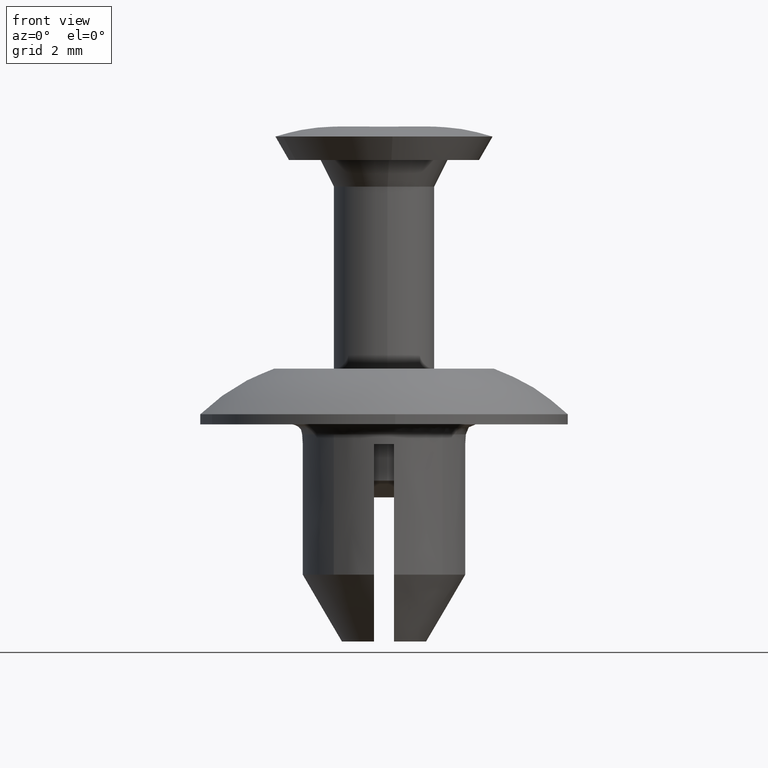
[diagram: clean part render]
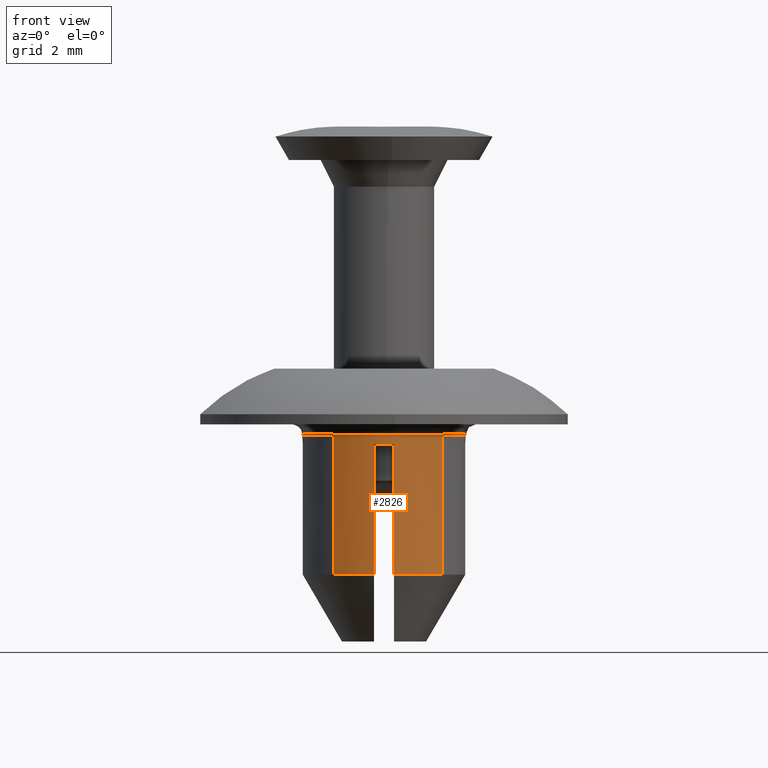
[diagram: same view with one face highlighted and labeled with its STEP entity id]
A machine part, front view. The second image highlights one B-rep face of the part: STEP entity #2826.
In plain terms, the highlighted face is a freeform B-spline surface patch.
Its self-contained STEP definition (entity closure, byte-faithful):
#2495=CARTESIAN_POINT('',(-1.502842864330901,-1.934932382571793,-9.213397459613795));
#2496=VERTEX_POINT('',#2495);
#2559=CARTESIAN_POINT('',(1.748466203141140,-1.716206845480194,-9.213397459621731));
#2560=VERTEX_POINT('',#2559);
#2574=CARTESIAN_POINT('',(1.748466196364398,-1.716206852384331,-13.413397459621700));
#2575=VERTEX_POINT('',#2574);
#2576=CARTESIAN_POINT('',(1.748466203141140,-1.716206845480194,-9.213397459621731));
#2577=CARTESIAN_POINT('',(1.748466196364398,-1.716206852384331,-13.413397459621700));
#2578=QUASI_UNIFORM_CURVE('',1,(#2576,#2577),.UNSPECIFIED.,.F.,.U.);
#2579=EDGE_CURVE('',#2560,#2575,#2578,.T.);
#2713=CARTESIAN_POINT('',(-1.502842821262076,-1.934932416024120,-13.413397459621660));
#2714=VERTEX_POINT('',#2713);
#2728=CARTESIAN_POINT('',(-1.502842864330901,-1.934932382571793,-9.213397459613795));
#2729=CARTESIAN_POINT('',(-1.502842821262076,-1.934932416024120,-13.413397459621660));
#2730=QUASI_UNIFORM_CURVE('',1,(#2728,#2729),.UNSPECIFIED.,.F.,.U.);
#2731=EDGE_CURVE('',#2496,#2714,#2730,.T.);
#2736=CARTESIAN_POINT('',(1.748466180731920,-1.716206868310638,-9.108397459583525));
#2737=CARTESIAN_POINT('',(0.220198207599098,-3.273201491428996,-9.108397459583525));
#2738=CARTESIAN_POINT('',(-1.502842956793189,-1.934932310758435,-9.108397459583527));
#2739=CARTESIAN_POINT('',(1.748466180731920,-1.716206868310638,-13.521022459622660));
#2740=CARTESIAN_POINT('',(0.220198207599098,-3.273201491428996,-13.521022459622660));
#2741=CARTESIAN_POINT('',(-1.502842956793189,-1.934932310758435,-13.521022459622655));
#2749=(BOUNDED_SURFACE()B_SPLINE_SURFACE(2,1,((#2736,#2739),(#2737,#2740),(#2738,#2741)),.UNSPECIFIED.,.F.,.F.,.U.)B_SPLINE_SURFACE_WITH_KNOTS((3,3),(2,2),(0.0,3.730453193041674),(0.0,4.412625000039133),.UNSPECIFIED.)GEOMETRIC_REPRESENTATION_ITEM()RATIONAL_B_SPLINE_SURFACE(((1.0,1.0),(0.730538238691624,0.730538238691624),(0.956886118190660,0.956886118190660)))REPRESENTATION_ITEM('')SURFACE());
#2750=CARTESIAN_POINT('',(1.748466203141140,-1.716206845480194,-9.213397459621731));
#2751=CARTESIAN_POINT('',(1.028211616694022,-2.449999999999975,-9.213397459621731));
#2752=CARTESIAN_POINT('',(0.0,-2.449999999999975,-9.213397459621731));
#2753=CARTESIAN_POINT('',(-0.839685634699757,-2.449999999999975,-9.213397459621730));
#2754=CARTESIAN_POINT('',(-1.502842864330901,-1.934932382571793,-9.213397459613795));
#2762=(BOUNDED_CURVE()B_SPLINE_CURVE(2,(#2750,#2751,#2752,#2753,#2754),.UNSPECIFIED.,.F.,.U.)B_SPLINE_CURVE_WITH_KNOTS((3,2,3),(0.623595116353077,0.750000000000000,0.856109346381656),.UNSPECIFIED.)CURVE()GEOMETRIC_REPRESENTATION_ITEM()RATIONAL_B_SPLINE_CURVE((0.853571889242175,0.851907467019651,1.0,0.875685167968340,0.856898060516079))REPRESENTATION_ITEM(''));
#2763=EDGE_CURVE('',#2560,#2496,#2762,.T.);
#2764=ORIENTED_EDGE('',*,*,#2763,.T.);
#2765=ORIENTED_EDGE('',*,*,#2731,.T.);
#2766=CARTESIAN_POINT('',(-0.299999999999980,-2.431563283157605,-13.413397459621560));
#2767=VERTEX_POINT('',#2766);
#2768=CARTESIAN_POINT('',(-0.299999999999980,-2.431563283157605,-13.413397459621560));
#2769=CARTESIAN_POINT('',(-0.969825013242659,-2.348922002396074,-13.413397459621631));
#2770=CARTESIAN_POINT('',(-1.502842821262076,-1.934932416024120,-13.413397459621658));
#2778=(BOUNDED_CURVE()B_SPLINE_CURVE(2,(#2768,#2769,#2770),.UNSPECIFIED.,.F.,.U.)B_SPLINE_CURVE_WITH_KNOTS((3,3),(0.0,0.409014598703624),.UNSPECIFIED.)CURVE()GEOMETRIC_REPRESENTATION_ITEM()RATIONAL_B_SPLINE_CURVE((1.0,0.913440310720170,0.897688974589740))REPRESENTATION_ITEM(''));
#2779=EDGE_CURVE('',#2767,#2714,#2778,.T.);
#2780=ORIENTED_EDGE('',*,*,#2779,.F.);
#2781=CARTESIAN_POINT('',(-0.299999999999980,-2.431563283157605,-9.513397459621761));
#2782=VERTEX_POINT('',#2781);
#2783=CARTESIAN_POINT('',(-0.299999999999980,-2.431563283157605,-9.513397459621761));
#2784=CARTESIAN_POINT('',(-0.299999999999980,-2.431563283157605,-13.413397459621560));
#2785=QUASI_UNIFORM_CURVE('',1,(#2783,#2784),.UNSPECIFIED.,.F.,.U.);
#2786=EDGE_CURVE('',#2782,#2767,#2785,.T.);
#2787=ORIENTED_EDGE('',*,*,#2786,.F.);
#2788=CARTESIAN_POINT('',(0.300000000000011,-2.431563283157600,-9.513397459621761));
#2789=VERTEX_POINT('',#2788);
#2790=CARTESIAN_POINT('',(0.300000000000012,-2.431563283157600,-9.513397459621761));
#2791=CARTESIAN_POINT('',(1.713039E-014,-2.468576508609469,-9.513397459621761));
#2792=CARTESIAN_POINT('',(-0.299999999999979,-2.431563283157604,-9.513397459621761));
#2800=(BOUNDED_CURVE()B_SPLINE_CURVE(2,(#2790,#2791,#2792),.UNSPECIFIED.,.F.,.U.)CURVE()GEOMETRIC_REPRESENTATION_ITEM()QUASI_UNIFORM_CURVE()RATIONAL_B_SPLINE_CURVE((1.0,0.992474809452068,1.0))REPRESENTATION_ITEM(''));
#2801=EDGE_CURVE('',#2789,#2782,#2800,.T.);
#2802=ORIENTED_EDGE('',*,*,#2801,.F.);
#2803=CARTESIAN_POINT('',(0.300000000000011,-2.431563283157600,-13.413397459621660));
#2804=VERTEX_POINT('',#2803);
#2805=CARTESIAN_POINT('',(0.300000000000011,-2.431563283157600,-9.513397459621761));
#2806=CARTESIAN_POINT('',(0.300000000000011,-2.431563283157600,-13.413397459621660));
#2807=QUASI_UNIFORM_CURVE('',1,(#2805,#2806),.UNSPECIFIED.,.F.,.U.);
#2808=EDGE_CURVE('',#2789,#2804,#2807,.T.);
#2809=ORIENTED_EDGE('',*,*,#2808,.T.);
#2810=CARTESIAN_POINT('',(1.748466196364398,-1.716206852384331,-13.413397459621708));
#2811=CARTESIAN_POINT('',(1.149139936981925,-2.326798590065236,-13.413397459621708));
#2812=CARTESIAN_POINT('',(0.300000000000011,-2.431563283157600,-13.413397459621660));
#2820=(BOUNDED_CURVE()B_SPLINE_CURVE(2,(#2810,#2811,#2812),.UNSPECIFIED.,.F.,.U.)B_SPLINE_CURVE_WITH_KNOTS((3,3),(0.493233492555598,1.0),.UNSPECIFIED.)CURVE()GEOMETRIC_REPRESENTATION_ITEM()RATIONAL_B_SPLINE_CURVE((0.894204465076633,0.892753091061186,1.0))REPRESENTATION_ITEM(''));
#2821=EDGE_CURVE('',#2575,#2804,#2820,.T.);
#2822=ORIENTED_EDGE('',*,*,#2821,.F.);
#2823=ORIENTED_EDGE('',*,*,#2579,.F.);
#2824=EDGE_LOOP('',(#2764,#2765,#2780,#2787,#2802,#2809,#2822,#2823));
#2825=FACE_OUTER_BOUND('',#2824,.T.);
#2826=ADVANCED_FACE('',(#2825),#2749,.T.);